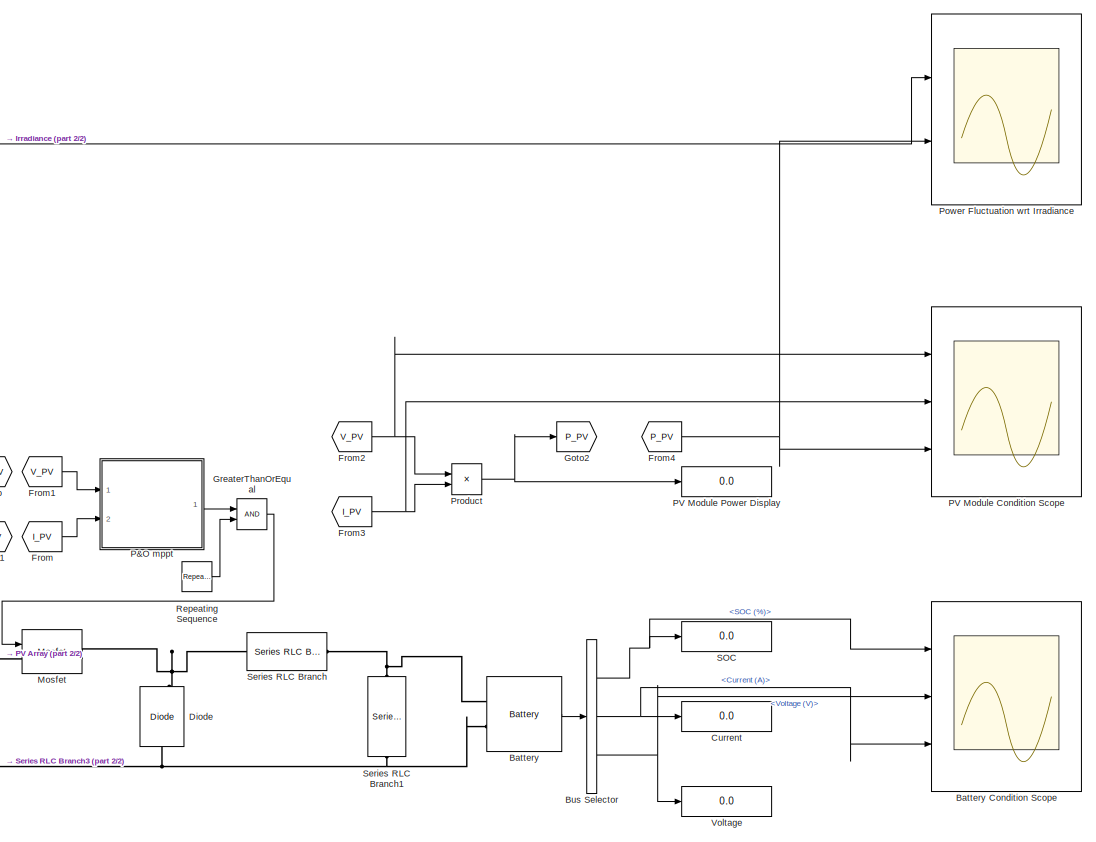
[diagram: root canvas - part 1/2, center side, full height]
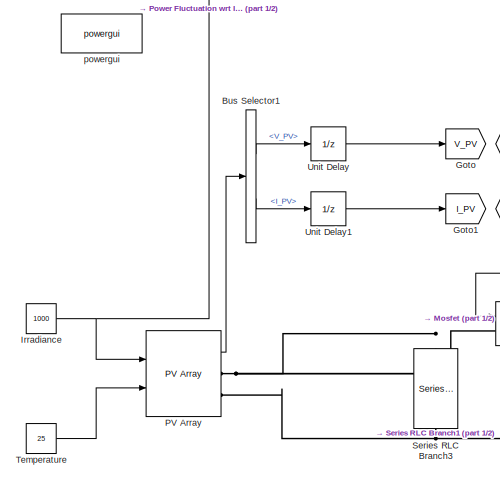
[diagram: root canvas - part 2/2, bottom left region]
MODEL slx_00b3f86e7eaa
KIND model
CONFIG AbsTol = auto
CONFIG EnableMultiTasking = off
CONFIG FixedStep = auto
CONFIG MaxStep = auto
CONFIG MinStep = auto
CONFIG RelTol = 1e-3
CONFIG SampleTimeConstraint = Unconstrained
CONFIG Solver = ode23t
CONFIG SolverName = ode23t
CONFIG StartTime = 0.0
CONFIG StopTime = 5
BLOCK [Reference] Battery  REF=electricdrivelib/Extra Sources/Battery
  Ports = [0, 1, 0, 0, 0, 2]
  SourceBlock = electricdrivelib/Extra Sources/Battery
  SourceProductBaseCode = PS
  SourceProductName = Simscape Power Systems
  SourceType = Battery
BLOCK [Scope] Battery Condition Scope
  Floating = off
  NumInputPorts = 3
  Ports = [3]
  ScopeSpecificationString = Simulink.scopes.TimeScopeBlockCfg('CurrentConfiguration', extmgr.ConfigurationSet(extmgr.Configuration('Core','General UI',true,'DisplayFullSourceName',true),extmgr.Configuration('Core','Source UI',true),extmgr.Configuration('Sources','WiredSimulink',true),extmgr.Configuration('Visuals','Time Domain',true,'SerializedDisplays',{struct('MinYLimReal','19.90407','MaxYLimReal','20.86193','YLabelReal','...<+2976ch>
BLOCK [BusSelector] Bus Selector
  OutputAsBus = off
  OutputSignals = SOC (%),Current (A),Voltage (V)
  Ports = [1, 3]
BLOCK [BusSelector] Bus Selector1
  OutputAsBus = off
  OutputSignals = V_PV,I_PV
  Ports = [1, 2]
BLOCK [Display] Current
  Decimation = 1
  Ports = [1]
BLOCK [Reference] Diode  REF=powerlib/Power
Electronics/Diode
  Ports = [0, 1, 0, 0, 0, 1, 1]
  SourceBlock = powerlib/Power\nElectronics/Diode
  SourceProductBaseCode = PS
  SourceProductName = Simscape Power Systems
  SourceType = Diode
BLOCK [From] From
  GotoTag = I_PV
  TagVisibility = global
BLOCK [From] From1
  GotoTag = V_PV
  IconDisplay = Tag and signal name
  TagVisibility = global
BLOCK [From] From2
  GotoTag = V_PV
  TagVisibility = global
BLOCK [From] From3
  GotoTag = I_PV
  TagVisibility = global
BLOCK [From] From4
  GotoTag = P_PV
  TagVisibility = global
BLOCK [Goto] Goto
  GotoTag = V_PV
  IconDisplay = Tag and signal name
  TagVisibility = global
BLOCK [Goto] Goto1
  GotoTag = I_PV
  TagVisibility = global
BLOCK [Goto] Goto2
  GotoTag = P_PV
  TagVisibility = global
BLOCK [RelationalOperator] GreaterThanOrEqual
  InputSameDT = off
  OutDataTypeStr = boolean
  Ports = [2, 1]
  RndMeth = Simplest
BLOCK [Constant] Irradiance
  Value = 1000
BLOCK [Reference] Mosfet  REF=powerlib/Power
Electronics/Mosfet
  Ports = [1, 1, 0, 0, 0, 1, 1]
  SourceBlock = powerlib/Power\nElectronics/Mosfet
  SourceProductBaseCode = PS
  SourceProductName = Simscape Power Systems
  SourceType = Mosfet
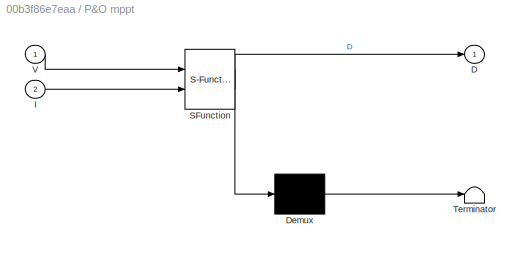
BLOCK [SubSystem] P&O mppt 
  ErrorFcn = Stateflow.Translate.translate
  PermitHierarchicalResolution = ExplicitOnly
  Ports = [2, 1]
  RequestExecContextInheritance = off
  SFBlockType = MATLAB Function
  TreatAsAtomicUnit = on
BLOCK [Demux] P&O mppt / Demux 
  Outputs = 1
  Ports = [1, 1]
BLOCK [S-Function] P&O mppt / SFunction 
  EnableBusSupport = on
  FunctionName = sf_sfun
  PortCounts = [2 2]
  Ports = [2, 2]
  SFcnIsStateOwnerBlock = off
  SFunctionDeploymentMode = off
  Tag = Stateflow S-Function P_O_Algorithm 3
BLOCK [Terminator] P&O mppt / Terminator 
BLOCK [Outport] P&O mppt /D
  IconDisplay = Port number
BLOCK [Inport] P&O mppt /I
  IconDisplay = Port number
  Port = 2
BLOCK [Inport] P&O mppt /V
  IconDisplay = Port number
BLOCK [Reference] PV Array  REF=re_lib/Solar/PV Array
  Ports = [2, 1, 0, 0, 0, 0, 2]
  SourceBlock = re_lib/Solar/PV Array
  SourceProductBaseCode = PS
  SourceProductName = Simscape Power Systems
  SourceType = PV array
BLOCK [Scope] PV Module Condition Scope
  Floating = off
  NumInputPorts = 3
  Ports = [3]
  ScopeSpecificationString = Simulink.scopes.TimeScopeBlockCfg('CurrentConfiguration', extmgr.ConfigurationSet(extmgr.Configuration('Core','General UI',true,'DisplayFullSourceName',true),extmgr.Configuration('Core','Source UI',true),extmgr.Configuration('Sources','WiredSimulink',true,'DataLoggingVariableName','ScopeData1'),extmgr.Configuration('Visuals','Time Domain',true,'SerializedDisplays',{struct('MinYLimReal','-3.68657',...<+2977ch>
BLOCK [Display] PV Module Power Display
  Decimation = 1
  Ports = [1]
BLOCK [Scope] Power Fluctuation wrt Irradiance
  Floating = off
  NumInputPorts = 2
  Ports = [2]
  ScopeSpecificationString = Simulink.scopes.TimeScopeBlockCfg('CurrentConfiguration', extmgr.ConfigurationSet(extmgr.Configuration('Core','General UI',true,'DisplayFullSourceName',true),extmgr.Configuration('Core','Source UI',true),extmgr.Configuration('Sources','WiredSimulink',true,'DataLoggingVariableName','ScopeData1'),extmgr.Configuration('Visuals','Time Domain',true,'SerializedDisplays',{struct('MinYLimReal','900.00000'...<+2125ch>
BLOCK [Product] Product
  InputSameDT = off
  OutDataTypeStr = Inherit: Inherit via internal rule
  Ports = [2, 1]
  RndMeth = Floor
  SaturateOnIntegerOverflow = off
BLOCK [Reference] Repeating Sequence  REF=simulink/Sources/Repeating
Sequence
  Ports = [0, 1]
  SourceBlock = simulink/Sources/Repeating\nSequence
  SourceProductBaseCode = SL
  SourceProductName = Simulink
  SourceType = Repeating table
BLOCK [Display] SOC
  Decimation = 1
  Ports = [1]
BLOCK [Reference] Series RLC Branch  REF=powerlib/Elements/Series RLC Branch
  Ports = [0, 0, 0, 0, 0, 1, 1]
  SourceBlock = powerlib/Elements/Series RLC Branch
  SourceProductBaseCode = PS
  SourceProductName = Simscape Power Systems
  SourceType = Series RLC Branch
BLOCK [Reference] Series RLC Branch1  REF=powerlib/Elements/Series RLC Branch
  Ports = [0, 0, 0, 0, 0, 1, 1]
  SourceBlock = powerlib/Elements/Series RLC Branch
  SourceProductBaseCode = PS
  SourceProductName = Simscape Power Systems
  SourceType = Series RLC Branch
BLOCK [Reference] Series RLC Branch3  REF=powerlib/Elements/Series RLC Branch
  Ports = [0, 0, 0, 0, 0, 1, 1]
  SourceBlock = powerlib/Elements/Series RLC Branch
  SourceProductBaseCode = PS
  SourceProductName = Simscape Power Systems
  SourceType = Series RLC Branch
BLOCK [Constant] Temperature 
  Value = 25
BLOCK [UnitDelay] Unit Delay
  InputProcessing = Elements as channels (sample based)
  SampleTime = 1e-4
BLOCK [UnitDelay] Unit Delay1
  InputProcessing = Elements as channels (sample based)
  SampleTime = 1e-4
BLOCK [Display] Voltage
  Decimation = 1
  Ports = [1]
BLOCK [Reference] powergui  REF=powerlib/powergui
  Ports = []
  Priority = 1
  SourceBlock = powerlib/powergui
  SourceProductBaseCode = PS
  SourceProductName = Simscape Power Systems
  SourceType = PSB option menu block
LINE Battery:1 -> Bus Selector:1
LINE Bus Selector1:1 -> Unit Delay:1
LINE Bus Selector1:2 -> Unit Delay1:1
NET Bus Selector:1 -> Battery Condition Scope:1, SOC:1
NET Bus Selector:2 -> Battery Condition Scope:3, Current:1
NET Bus Selector:3 -> Battery Condition Scope:2, Voltage:1
LINE From1:1 -> P&O mppt :1
NET From2:1 -> PV Module Condition Scope:1, Product:1
NET From3:1 -> PV Module Condition Scope:2, Product:2
NET From4:1 -> PV Module Condition Scope:3, Power Fluctuation wrt Irradiance:2
LINE From:1 -> P&O mppt :2
LINE GreaterThanOrEqual:1 -> Mosfet:1
NET Irradiance:1 -> PV Array:1, Power Fluctuation wrt Irradiance:1
LINE P&O mppt :1 -> GreaterThanOrEqual:1
LINE PV Array:1 -> Bus Selector1:1
NET Product:1 -> Goto2:1, PV Module Power Display:1
LINE Repeating Sequence:1 -> GreaterThanOrEqual:2
LINE Temperature :1 -> PV Array:2
LINE Unit Delay1:1 -> Goto1:1
LINE Unit Delay:1 -> Goto:1
PNET net1: Battery:LConn1 -- Series RLC Branch1:LConn1 -- Series RLC Branch:RConn1
PNET net2: Battery:LConn2 -- Diode:LConn1 -- PV Array:RConn2 -- Series RLC Branch1:RConn1 -- Series RLC Branch3:RConn1
PNET net3: Diode:RConn1 -- Mosfet:RConn1 -- Series RLC Branch:LConn1
PNET net4: Mosfet:LConn1 -- PV Array:RConn1 -- Series RLC Branch3:LConn1
note: NET lines group one-source signal fan-out (src -> all destinations, sorted); 1:1 wires keep LINE; PNET lines group multi-terminal physical nets as a canonical sorted terminal list (undirected conserving connections); 2-terminal nets keep the pairwise PLINE form
CHART P&O mppt
 states=1 transitions=1
  STATE_LABEL 'eML_blk_kernel()'
  STATE_LABEL "SCRIPT:\nfunction D = Duty_Cycle(V,I)\nDmax = 0.95;\nDmin = 0;\nDinit = 0.95;\nDe1D = 0.0001;\npersistent Vo1d Po1d Do1d;\n\ndatatype = 'double' ;\n\nif isempty(Vo1d)\n    Vo1d = 0;\n    Po1d = 0;\n    Do1d = Dinit;\nend\n\nP = V * I;\ndV = V-Vo1d;\ndP = P-Po1d;\nif dP ~= 0\n    if dP < 0\n        if dV < 0\n            D = Do1d - De1D;\n        else\n            D = Do1d + De1D;\n        end\n    else\n        if dV < 0\n  ...<+194ch>"
